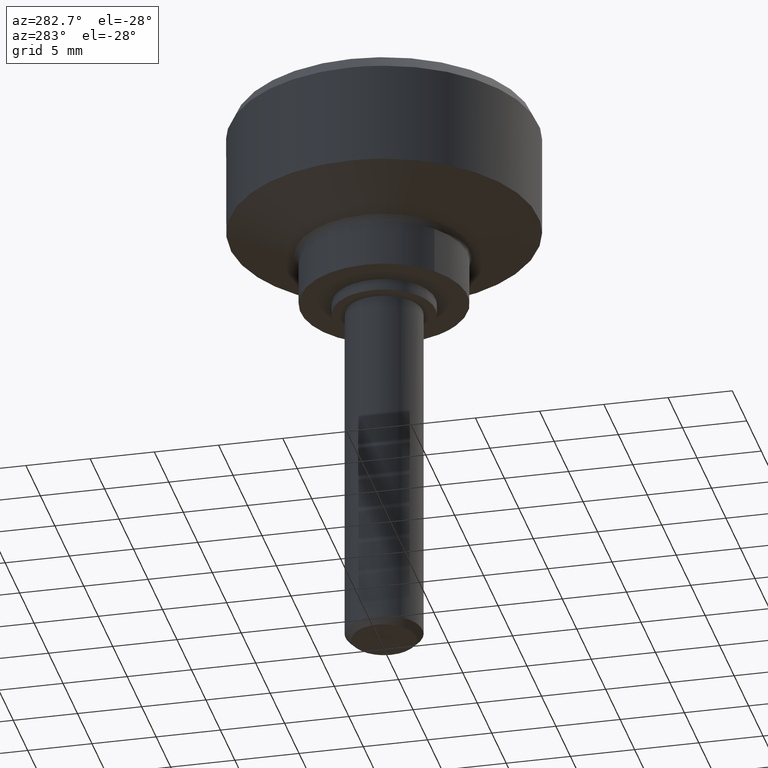
[diagram: clean part render]
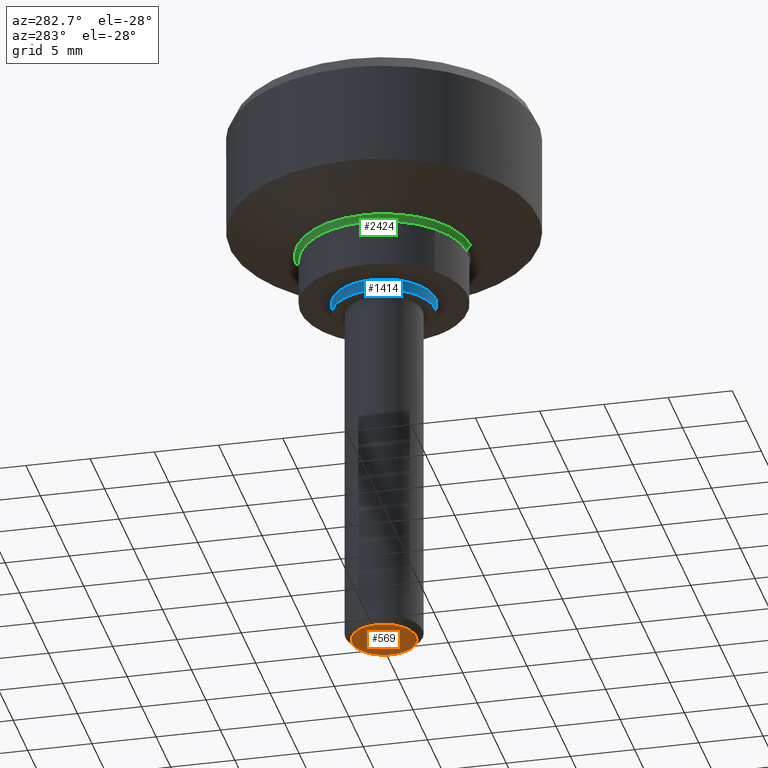
[diagram: same view with three faces highlighted in distinct colors, each labeled with its STEP entity id]
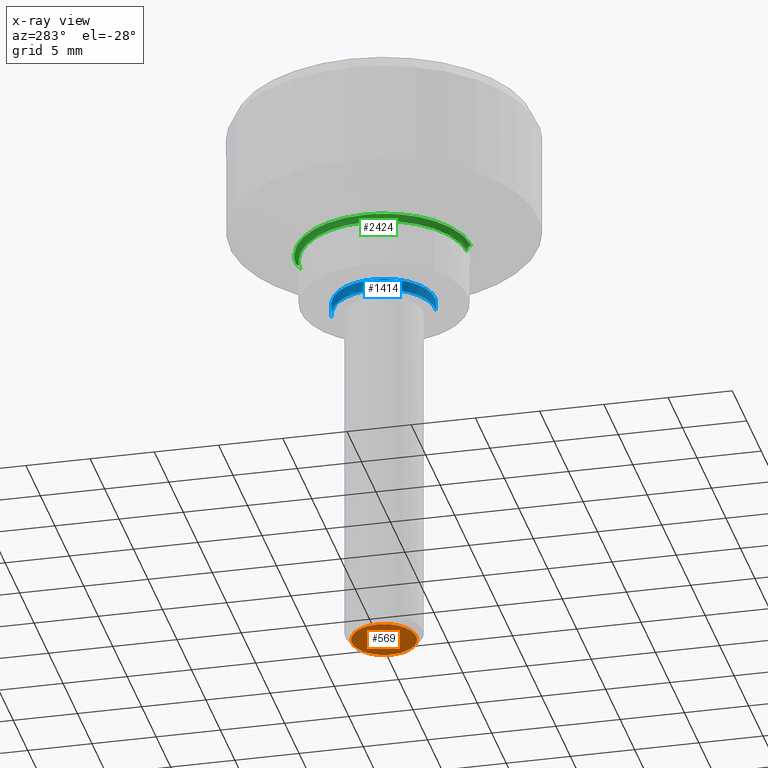
[diagram: x-ray of the same camera — body ghosted, the three highlighted faces saturated]
A machine part, auxiliary view with three faces highlighted in distinct colors.
The next image is the same camera in x-ray (body ghosted, the three faces saturated) — at least one of them is partly hidden behind the body in this view.
Their STEP definitions:

[orange] entity #569 — the highlighted face is a freeform B-spline surface patch.
#268=CARTESIAN_POINT('',(-0.196147739508448,2.492293334342505,-27.999999999975529));
#269=VERTEX_POINT('',#268);
#275=CARTESIAN_POINT('',(-2.500000000000000,0.0,-28.0));
#276=VERTEX_POINT('',#275);
#277=CARTESIAN_POINT('',(-2.500000000000000,0.0,-28.0));
#278=CARTESIAN_POINT('',(-2.500000000000000,2.310976228797813,-28.000000000000004));
#279=CARTESIAN_POINT('',(-0.196147739508448,2.492293334342504,-27.999999999975529));
#287=(BOUNDED_CURVE()B_SPLINE_CURVE(2,(#277,#278,#279),.UNSPECIFIED.,.F.,.U.)B_SPLINE_CURVE_WITH_KNOTS((3,3),(0.0,0.236331300607054),.UNSPECIFIED.)CURVE()GEOMETRIC_REPRESENTATION_ITEM()RATIONAL_B_SPLINE_CURVE((1.0,0.723120658635321,0.969723356118155))REPRESENTATION_ITEM(''));
#288=EDGE_CURVE('',#276,#269,#287,.T.);
#290=CARTESIAN_POINT('',(0.196147739508448,-2.492293334342506,-27.999999999975529));
#291=VERTEX_POINT('',#290);
#292=CARTESIAN_POINT('',(0.196147739508448,-2.492293334342506,-27.999999999975525));
#293=CARTESIAN_POINT('',(0.098225267706956,-2.500000000000000,-27.999999999999996));
#294=CARTESIAN_POINT('',(0.0,-2.500000000000000,-28.0));
#295=CARTESIAN_POINT('',(-2.500000000000000,-2.500000000000000,-27.999999999999996));
#296=CARTESIAN_POINT('',(-2.500000000000000,0.0,-28.0));
#304=(BOUNDED_CURVE()B_SPLINE_CURVE(2,(#292,#293,#294,#295,#296),.UNSPECIFIED.,.F.,.U.)B_SPLINE_CURVE_WITH_KNOTS((3,2,3),(0.736331300607054,0.750000000000000,1.0),.UNSPECIFIED.)CURVE()GEOMETRIC_REPRESENTATION_ITEM()RATIONAL_B_SPLINE_CURVE((0.969723356118155,0.983986122551227,1.0,0.707106781186548,1.0))REPRESENTATION_ITEM(''));
#305=EDGE_CURVE('',#291,#276,#304,.T.);
#342=CARTESIAN_POINT('',(2.500000000000000,0.0,-28.0));
#343=VERTEX_POINT('',#342);
#344=CARTESIAN_POINT('',(2.500000000000000,0.0,-28.0));
#345=CARTESIAN_POINT('',(2.499999999999999,-2.310976228797800,-28.0));
#346=CARTESIAN_POINT('',(0.196147739508448,-2.492293334342505,-27.999999999975529));
#354=(BOUNDED_CURVE()B_SPLINE_CURVE(2,(#344,#345,#346),.UNSPECIFIED.,.F.,.U.)B_SPLINE_CURVE_WITH_KNOTS((3,3),(0.500000000000000,0.736331300607053),.UNSPECIFIED.)CURVE()GEOMETRIC_REPRESENTATION_ITEM()RATIONAL_B_SPLINE_CURVE((1.0,0.723120658635322,0.969723356118153))REPRESENTATION_ITEM(''));
#355=EDGE_CURVE('',#343,#291,#354,.T.);
#357=CARTESIAN_POINT('',(-0.196147739508448,2.492293334342505,-27.999999999975525));
#358=CARTESIAN_POINT('',(-0.098225267706956,2.500000000000000,-27.999999999999996));
#359=CARTESIAN_POINT('',(0.0,2.500000000000000,-28.0));
#360=CARTESIAN_POINT('',(2.500000000000000,2.500000000000000,-27.999999999999996));
#361=CARTESIAN_POINT('',(2.500000000000000,0.0,-28.0));
#369=(BOUNDED_CURVE()B_SPLINE_CURVE(2,(#357,#358,#359,#360,#361),.UNSPECIFIED.,.F.,.U.)B_SPLINE_CURVE_WITH_KNOTS((3,2,3),(0.236331300607054,0.250000000000000,0.500000000000000),.UNSPECIFIED.)CURVE()GEOMETRIC_REPRESENTATION_ITEM()RATIONAL_B_SPLINE_CURVE((0.969723356118155,0.983986122551227,1.0,0.707106781186548,1.0))REPRESENTATION_ITEM(''));
#370=EDGE_CURVE('',#269,#343,#369,.T.);
#558=CARTESIAN_POINT('',(2.749749990309030,-2.748986881817092,-28.0));
#559=CARTESIAN_POINT('',(-2.749750124419481,-2.748986881817092,-28.0));
#560=CARTESIAN_POINT('',(2.749749990309030,2.748987015927542,-28.0));
#561=CARTESIAN_POINT('',(-2.749750124419481,2.748987015927542,-28.0));
#562=B_SPLINE_SURFACE_WITH_KNOTS('',1,1,((#558,#560),(#559,#561)),.UNSPECIFIED.,.F.,.F.,.U.,(2,2),(2,2),(0.0,5.499500114728511),(0.0,5.497973897744633),.UNSPECIFIED.);
#563=ORIENTED_EDGE('',*,*,#288,.T.);
#564=ORIENTED_EDGE('',*,*,#370,.T.);
#565=ORIENTED_EDGE('',*,*,#355,.T.);
#566=ORIENTED_EDGE('',*,*,#305,.T.);
#567=EDGE_LOOP('',(#563,#564,#565,#566));
#568=FACE_OUTER_BOUND('',#567,.T.);
#569=ADVANCED_FACE('',(#568),#562,.T.);

[blue] entity #1414 — the highlighted face is a freeform B-spline surface patch.
#1251=CARTESIAN_POINT('',(-0.472135474415619,3.972038279497840,0.899993000000071));
#1252=VERTEX_POINT('',#1251);
#1270=CARTESIAN_POINT('',(0.244194158165004,-3.992539193685903,0.899993000000109));
#1271=VERTEX_POINT('',#1270);
#1285=CARTESIAN_POINT('',(0.244194158165003,-3.992539193685903,1.040834E-017));
#1286=VERTEX_POINT('',#1285);
#1287=CARTESIAN_POINT('',(0.244194158165004,-3.992539193685903,0.899993000000109));
#1288=CARTESIAN_POINT('',(0.244194158165003,-3.992539193685903,1.040834E-017));
#1289=QUASI_UNIFORM_CURVE('',1,(#1287,#1288),.UNSPECIFIED.,.F.,.U.);
#1290=EDGE_CURVE('',#1271,#1286,#1289,.T.);
#1307=CARTESIAN_POINT('',(-0.472135492022497,3.972038277405008,8.873213E-018));
#1308=VERTEX_POINT('',#1307);
#1324=CARTESIAN_POINT('',(-0.472135474415619,3.972038279497840,0.899993000000071));
#1325=CARTESIAN_POINT('',(-0.472135492022497,3.972038277405008,8.873213E-018));
#1326=QUASI_UNIFORM_CURVE('',1,(#1324,#1325),.UNSPECIFIED.,.F.,.U.);
#1327=EDGE_CURVE('',#1252,#1308,#1326,.T.);
#1332=CARTESIAN_POINT('',(0.244194158139428,-3.992539193687467,0.922492825000112));
#1333=CARTESIAN_POINT('',(-3.748345035548039,-4.236733351826894,0.922492825000112));
#1334=CARTESIAN_POINT('',(-3.992539193687467,-0.244194158139428,0.922492825000112));
#1335=CARTESIAN_POINT('',(-4.223144786930110,3.526173963358004,0.922492825000112));
#1336=CARTESIAN_POINT('',(-0.472136938627034,3.972038105454666,0.922492825000112));
#1337=CARTESIAN_POINT('',(0.244194158139428,-3.992539193687467,-0.023062320625003));
#1338=CARTESIAN_POINT('',(-3.748345035548039,-4.236733351826894,-0.023062320625003));
#1339=CARTESIAN_POINT('',(-3.992539193687467,-0.244194158139428,-0.023062320625003));
#1340=CARTESIAN_POINT('',(-4.223144786930110,3.526173963358004,-0.023062320625003));
#1341=CARTESIAN_POINT('',(-0.472136938627034,3.972038105454666,-0.023062320625003));
#1349=(BOUNDED_SURFACE()B_SPLINE_SURFACE(2,1,((#1332,#1337),(#1333,#1338),(#1334,#1339),(#1335,#1340),(#1336,#1341)),.UNSPECIFIED.,.F.,.F.,.U.)B_SPLINE_SURFACE_WITH_KNOTS((3,2,3),(2,2),(0.0,6.627416997969518,12.989737316020260),(0.0,1.0),.UNSPECIFIED.)GEOMETRIC_REPRESENTATION_ITEM()RATIONAL_B_SPLINE_SURFACE(((1.0,1.0),(0.707106781186548,0.707106781186548),(1.0,1.0),(0.718822509939086,0.718822509939086),(0.977505800795127,0.977505800795127)))REPRESENTATION_ITEM('')SURFACE());
#1350=CARTESIAN_POINT('',(-4.0,0.0,0.899993000000109));
#1351=VERTEX_POINT('',#1350);
#1352=CARTESIAN_POINT('',(-4.0,0.0,0.899993000000109));
#1353=CARTESIAN_POINT('',(-4.000000000000001,3.552699422655225,0.899993000000109));
#1354=CARTESIAN_POINT('',(-0.472135474415619,3.972038279497840,0.899993000000071));
#1362=(BOUNDED_CURVE()B_SPLINE_CURVE(2,(#1352,#1353,#1354),.UNSPECIFIED.,.F.,.U.)B_SPLINE_CURVE_WITH_KNOTS((3,3),(0.0,0.229562535815271),.UNSPECIFIED.)CURVE()GEOMETRIC_REPRESENTATION_ITEM()RATIONAL_B_SPLINE_CURVE((1.0,0.731050759864347,0.956026876297741))REPRESENTATION_ITEM(''));
#1363=EDGE_CURVE('',#1351,#1252,#1362,.T.);
#1364=ORIENTED_EDGE('',*,*,#1363,.T.);
#1365=ORIENTED_EDGE('',*,*,#1327,.T.);
#1366=CARTESIAN_POINT('',(-4.0,0.0,0.0));
#1367=VERTEX_POINT('',#1366);
#1368=CARTESIAN_POINT('',(-4.0,0.0,0.0));
#1369=CARTESIAN_POINT('',(-4.0,3.552699406796295,0.0));
#1370=CARTESIAN_POINT('',(-0.472135492022498,3.972038277405008,8.873213E-018));
#1378=(BOUNDED_CURVE()B_SPLINE_CURVE(2,(#1368,#1369,#1370),.UNSPECIFIED.,.F.,.U.)B_SPLINE_CURVE_WITH_KNOTS((3,3),(0.0,0.229562535066130),.UNSPECIFIED.)CURVE()GEOMETRIC_REPRESENTATION_ITEM()RATIONAL_B_SPLINE_CURVE((1.0,0.731050760742021,0.956026874829391))REPRESENTATION_ITEM(''));
#1379=EDGE_CURVE('',#1367,#1308,#1378,.T.);
#1380=ORIENTED_EDGE('',*,*,#1379,.F.);
#1381=CARTESIAN_POINT('',(0.244194158165002,-3.992539193685904,1.040834E-017));
#1382=CARTESIAN_POINT('',(0.122211053220002,-4.0,0.0));
#1383=CARTESIAN_POINT('',(0.0,-4.0,0.0));
#1384=CARTESIAN_POINT('',(-4.000000000000000,-4.000000000000000,0.0));
#1385=CARTESIAN_POINT('',(-4.0,0.0,0.0));
#1393=(BOUNDED_CURVE()B_SPLINE_CURVE(2,(#1381,#1382,#1383,#1384,#1385),.UNSPECIFIED.,.F.,.U.)B_SPLINE_CURVE_WITH_KNOTS((3,2,3),(0.739332962239758,0.750000000000000,1.0),.UNSPECIFIED.)CURVE()GEOMETRIC_REPRESENTATION_ITEM()RATIONAL_B_SPLINE_CURVE((0.976072041668464,0.987502787900792,1.0,0.707106781186548,1.0))REPRESENTATION_ITEM(''));
#1394=EDGE_CURVE('',#1286,#1367,#1393,.T.);
#1395=ORIENTED_EDGE('',*,*,#1394,.F.);
#1396=ORIENTED_EDGE('',*,*,#1290,.F.);
#1397=CARTESIAN_POINT('',(0.244194158165004,-3.992539193685903,0.899993000000109));
#1398=CARTESIAN_POINT('',(0.122211053220003,-4.000000000000001,0.899993000000109));
#1399=CARTESIAN_POINT('',(0.0,-4.0,0.899993000000109));
#1400=CARTESIAN_POINT('',(-4.000000000000000,-4.000000000000000,0.899993000000109));
#1401=CARTESIAN_POINT('',(-4.0,0.0,0.899993000000109));
#1409=(BOUNDED_CURVE()B_SPLINE_CURVE(2,(#1397,#1398,#1399,#1400,#1401),.UNSPECIFIED.,.F.,.U.)B_SPLINE_CURVE_WITH_KNOTS((3,2,3),(0.739332962239758,0.750000000000000,1.0),.UNSPECIFIED.)CURVE()GEOMETRIC_REPRESENTATION_ITEM()RATIONAL_B_SPLINE_CURVE((0.976072041668464,0.987502787900792,1.0,0.707106781186548,1.0))REPRESENTATION_ITEM(''));
#1410=EDGE_CURVE('',#1271,#1351,#1409,.T.);
#1411=ORIENTED_EDGE('',*,*,#1410,.T.);
#1412=EDGE_LOOP('',(#1364,#1365,#1380,#1395,#1396,#1411));
#1413=FACE_OUTER_BOUND('',#1412,.T.);
#1414=ADVANCED_FACE('',(#1413),#1349,.T.);

[green] entity #2424 — the highlighted face is a freeform B-spline surface patch.
#1458=CARTESIAN_POINT('',(-4.283301413134332,-4.889103087912796,4.555701999950228));
#1459=VERTEX_POINT('',#1458);
#1465=CARTESIAN_POINT('',(-6.500000000000000,0.0,4.555701999999901));
#1466=VERTEX_POINT('',#1465);
#1467=CARTESIAN_POINT('',(-4.283301413134332,-4.889103087912796,4.555701999950228));
#1468=CARTESIAN_POINT('',(-6.499999999999999,-2.947072408893604,4.555701999999901));
#1469=CARTESIAN_POINT('',(-6.500000000000000,0.0,4.555701999999901));
#1477=(BOUNDED_CURVE()B_SPLINE_CURVE(2,(#1467,#1468,#1469),.UNSPECIFIED.,.F.,.U.)B_SPLINE_CURVE_WITH_KNOTS((3,3),(0.865045255024688,1.0),.UNSPECIFIED.)CURVE()GEOMETRIC_REPRESENTATION_ITEM()RATIONAL_B_SPLINE_CURVE((0.854482184959186,0.841890681400129,1.0))REPRESENTATION_ITEM(''));
#1478=EDGE_CURVE('',#1459,#1466,#1477,.T.);
#1480=CARTESIAN_POINT('',(-0.126900594161150,6.498761131108108,4.555701999863015));
#1481=VERTEX_POINT('',#1480);
#1482=CARTESIAN_POINT('',(-6.500000000000000,0.0,4.555701999999901));
#1483=CARTESIAN_POINT('',(-6.500000000000000,6.374314319632387,4.555701999999902));
#1484=CARTESIAN_POINT('',(-0.126900594161150,6.498761131108108,4.555701999863015));
#1492=(BOUNDED_CURVE()B_SPLINE_CURVE(2,(#1482,#1483,#1484),.UNSPECIFIED.,.F.,.U.)B_SPLINE_CURVE_WITH_KNOTS((3,3),(0.0,0.246562331022470),.UNSPECIFIED.)CURVE()GEOMETRIC_REPRESENTATION_ITEM()RATIONAL_B_SPLINE_CURVE((1.0,0.711134260914723,0.992055801680602))REPRESENTATION_ITEM(''));
#1493=EDGE_CURVE('',#1466,#1481,#1492,.T.);
#1597=CARTESIAN_POINT('',(-0.244986187355833,-6.495381572163781,4.555701999859737));
#1598=VERTEX_POINT('',#1597);
#1614=CARTESIAN_POINT('',(-0.244986187355833,-6.495381572163781,4.555701999859737));
#1615=CARTESIAN_POINT('',(-2.549034116033307,-6.408479838791608,4.555701999911365));
#1616=CARTESIAN_POINT('',(-4.283301413134332,-4.889103087912796,4.555701999950228));
#1624=(BOUNDED_CURVE()B_SPLINE_CURVE(2,(#1614,#1615,#1616),.UNSPECIFIED.,.F.,.U.)B_SPLINE_CURVE_WITH_KNOTS((3,3),(0.756613471417402,0.865045255024688),.UNSPECIFIED.)CURVE()GEOMETRIC_REPRESENTATION_ITEM()RATIONAL_B_SPLINE_CURVE((0.984913610626813,0.864599051835232,0.854482184959186))REPRESENTATION_ITEM(''));
#1625=EDGE_CURVE('',#1598,#1459,#1624,.T.);
#1679=CARTESIAN_POINT('',(-0.133131989355560,6.817879777029487,5.021860706398572));
#1680=VERTEX_POINT('',#1679);
#1696=CARTESIAN_POINT('',(-6.819179549401331,0.0,5.021860733314310));
#1697=VERTEX_POINT('',#1696);
#1698=CARTESIAN_POINT('',(-6.819179549401331,0.0,5.021860733314310));
#1699=CARTESIAN_POINT('',(-6.819179549401331,6.687322129815215,5.021860733314309));
#1700=CARTESIAN_POINT('',(-0.133131989355560,6.817879777029487,5.021860706398573));
#1708=(BOUNDED_CURVE()B_SPLINE_CURVE(2,(#1698,#1699,#1700),.UNSPECIFIED.,.F.,.U.)B_SPLINE_CURVE_WITH_KNOTS((3,3),(0.0,0.246562330997886),.UNSPECIFIED.)CURVE()GEOMETRIC_REPRESENTATION_ITEM()RATIONAL_B_SPLINE_CURVE((1.0,0.711134260943525,0.992055801624584))REPRESENTATION_ITEM(''));
#1709=EDGE_CURVE('',#1697,#1680,#1708,.T.);
#1711=CARTESIAN_POINT('',(-0.257016120606417,-6.814334266405956,5.021860706397108));
#1712=VERTEX_POINT('',#1711);
#1713=CARTESIAN_POINT('',(-0.257016120606417,-6.814334266405956,5.021860706397108));
#1714=CARTESIAN_POINT('',(-6.819179549401331,-6.566829337767828,5.021860733314310));
#1715=CARTESIAN_POINT('',(-6.819179549401331,0.0,5.021860733314310));
#1723=(BOUNDED_CURVE()B_SPLINE_CURVE(2,(#1713,#1714,#1715),.UNSPECIFIED.,.F.,.U.)B_SPLINE_CURVE_WITH_KNOTS((3,3),(0.756613471435007,1.0),.UNSPECIFIED.)CURVE()GEOMETRIC_REPRESENTATION_ITEM()RATIONAL_B_SPLINE_CURVE((0.984913610587744,0.714854944931068,1.0))REPRESENTATION_ITEM(''));
#1724=EDGE_CURVE('',#1712,#1697,#1723,.T.);
#2343=CARTESIAN_POINT('',(-0.126900594161150,6.498761131108108,4.555701999863015));
#2344=CARTESIAN_POINT('',(-0.126900594151719,6.498761131104850,4.561985515924727));
#2345=CARTESIAN_POINT('',(-0.126903676964677,6.498919006370634,4.568267047721569));
#2346=CARTESIAN_POINT('',(-0.127067151250199,6.507290758605430,4.901361833639606));
#2347=CARTESIAN_POINT('',(-0.133131989355560,6.817879777029487,5.021860706398571));
#2355=(BOUNDED_CURVE()B_SPLINE_CURVE(2,(#2343,#2344,#2345,#2346,#2347),.UNSPECIFIED.,.F.,.U.)B_SPLINE_CURVE_WITH_KNOTS((3,2,3),(-2.039238102310271,-2.0,-0.314467723271109),.UNSPECIFIED.)CURVE()GEOMETRIC_REPRESENTATION_ITEM()RATIONAL_B_SPLINE_CURVE((0.968868884557692,0.973100923156689,0.977505800795127,0.788287592026524,0.918002781482227))REPRESENTATION_ITEM(''));
#2356=EDGE_CURVE('',#1481,#1680,#2355,.T.);
#2362=CARTESIAN_POINT('',(-0.244986187355833,-6.495381572163781,4.555701999859737));
#2363=CARTESIAN_POINT('',(-0.244986187354442,-6.495381572160308,4.561985515921451));
#2364=CARTESIAN_POINT('',(-0.244992138836375,-6.495539365326100,4.568267047721569));
#2365=CARTESIAN_POINT('',(-0.245307731857886,-6.503906763987881,4.901361833633763));
#2366=CARTESIAN_POINT('',(-0.257016120606417,-6.814334266405956,5.021860706397108));
#2374=(BOUNDED_CURVE()B_SPLINE_CURVE(2,(#2362,#2363,#2364,#2365,#2366),.UNSPECIFIED.,.F.,.U.)B_SPLINE_CURVE_WITH_KNOTS((3,2,3),(-2.039238102330646,-2.0,-0.314467723294948),.UNSPECIFIED.)CURVE()GEOMETRIC_REPRESENTATION_ITEM()RATIONAL_B_SPLINE_CURVE((0.991164332493163,0.995493758055305,1.0,0.806427533614622,0.939127707203202))REPRESENTATION_ITEM(''));
#2375=EDGE_CURVE('',#1598,#1712,#2374,.T.);
#2382=CARTESIAN_POINT('',(-0.245015673728280,-6.496163351946863,4.527742679463707));
#2383=CARTESIAN_POINT('',(-6.741179025675142,-6.251147678218583,4.527742679463706));
#2384=CARTESIAN_POINT('',(-6.496163351946863,0.245015673728281,4.527742679463707));
#2385=CARTESIAN_POINT('',(-6.264781957631954,6.379689881296658,4.527742679463706));
#2386=CARTESIAN_POINT('',(-0.126915867822448,6.499543317652781,4.527742679463706));
#2387=CARTESIAN_POINT('',(-0.244972929287248,-6.495030057626932,4.547992199363587));
#2388=CARTESIAN_POINT('',(-6.740002986914178,-6.250057128339684,4.547992199363587));
#2389=CARTESIAN_POINT('',(-6.495030057626932,0.244972929287249,4.547992199363587));
#2390=CARTESIAN_POINT('',(-6.263689029171946,6.378576906466177,4.547992199363585));
#2391=CARTESIAN_POINT('',(-0.126893726594723,6.498409433677734,4.547992199363585));
#2392=CARTESIAN_POINT('',(-0.244992138836375,-6.495539365326100,4.568267047721569));
#2393=CARTESIAN_POINT('',(-6.740531504162474,-6.250547226489726,4.568267047721569));
#2394=CARTESIAN_POINT('',(-6.495539365326100,0.244992138836376,4.568267047721569));
#2395=CARTESIAN_POINT('',(-6.264180196267319,6.379077082492983,4.568267047721570));
#2396=CARTESIAN_POINT('',(-0.126903676964677,6.498919006370636,4.568267047721569));
#2397=CARTESIAN_POINT('',(-0.245327983267804,-6.504443694809213,4.922736320999585));
#2398=CARTESIAN_POINT('',(-6.749771678077015,-6.259115711541408,4.922736320999586));
#2399=CARTESIAN_POINT('',(-6.504443694809213,0.245327983267805,4.922736320999585));
#2400=CARTESIAN_POINT('',(-6.272767369906339,6.387821761101799,4.922736320999585));
#2401=CARTESIAN_POINT('',(-0.127077641294466,6.507827968792706,4.922736320999585));
#2402=CARTESIAN_POINT('',(-0.258047151123473,-6.841670251926912,5.031568014530799));
#2403=CARTESIAN_POINT('',(-7.099717403050383,-6.583623100803439,5.031568014530798));
#2404=CARTESIAN_POINT('',(-6.841670251926912,0.258047151123475,5.031568014530799));
#2405=CARTESIAN_POINT('',(-6.597982537106864,6.719001988197464,5.031568014530800));
#2406=CARTESIAN_POINT('',(-0.133666053381817,6.845229985506544,5.031568014530800));
#2414=(BOUNDED_SURFACE()B_SPLINE_SURFACE(2,2,((#2382,#2387,#2392,#2397,#2402),(#2383,#2388,#2393,#2398,#2403),(#2384,#2389,#2394,#2399,#2404),(#2385,#2390,#2395,#2400,#2405),(#2386,#2391,#2396,#2401,#2406)),.UNSPECIFIED.,.F.,.F.,.U.)B_SPLINE_SURFACE_WITH_KNOTS((3,2,3),(3,2,3),(0.0,11.343710447160650,22.233672476434869),(0.0,0.045089108717911,0.682172151026907),.UNSPECIFIED.)GEOMETRIC_REPRESENTATION_ITEM()RATIONAL_B_SPLINE_SURFACE(((0.973005231713131,0.985599796758613,1.0,0.796533452273671,0.953545533384210),(0.688018597474343,0.696924299824098,0.707106781186548,0.563234205544644,0.674258512826118),(0.973005231713131,0.985599796758613,1.0,0.796533452273671,0.953545533384210),(0.699418062843894,0.708471319701479,0.718822509939086,0.572566175413805,0.685429993648442),(0.951118258203592,0.963429518594042,0.977505800795127,0.778616070124882,0.932096290205348)))REPRESENTATION_ITEM('')SURFACE());
#2415=ORIENTED_EDGE('',*,*,#1493,.F.);
#2416=ORIENTED_EDGE('',*,*,#1478,.F.);
#2417=ORIENTED_EDGE('',*,*,#1625,.F.);
#2418=ORIENTED_EDGE('',*,*,#2375,.T.);
#2419=ORIENTED_EDGE('',*,*,#1724,.T.);
#2420=ORIENTED_EDGE('',*,*,#1709,.T.);
#2421=ORIENTED_EDGE('',*,*,#2356,.F.);
#2422=EDGE_LOOP('',(#2415,#2416,#2417,#2418,#2419,#2420,#2421));
#2423=FACE_OUTER_BOUND('',#2422,.T.);
#2424=ADVANCED_FACE('',(#2423),#2414,.F.);